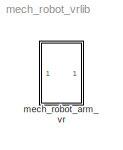
MODEL mech_robot_vrlib
KIND library
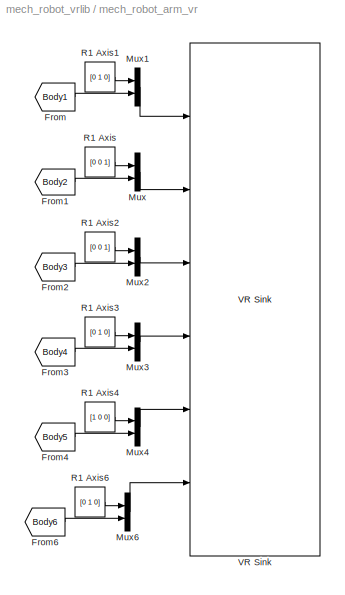
BLOCK [SubSystem] mech_robot_arm_vr
  FunctionWithSeparateData = off
  MaskHideContents = off
  MinAlgLoopOccurrences = off
  Opaque = off
  Ports = []
  PropExecContextOutsideSubsystem = off
  RTWSystemCode = Auto
  RequestExecContextInheritance = off
BLOCK [From] mech_robot_arm_vr/From
  CloseFcn = tagdialog Close
  GotoTag = Body1
BLOCK [From] mech_robot_arm_vr/From1
  CloseFcn = tagdialog Close
  GotoTag = Body2
BLOCK [From] mech_robot_arm_vr/From2
  CloseFcn = tagdialog Close
  GotoTag = Body3
BLOCK [From] mech_robot_arm_vr/From3
  CloseFcn = tagdialog Close
  GotoTag = Body4
BLOCK [From] mech_robot_arm_vr/From4
  CloseFcn = tagdialog Close
  GotoTag = Body5
BLOCK [From] mech_robot_arm_vr/From6
  CloseFcn = tagdialog Close
  GotoTag = Body6
BLOCK [Mux] mech_robot_arm_vr/Mux
  DisplayOption = bar
  Inputs = 2
  Ports = [2, 1]
BLOCK [Mux] mech_robot_arm_vr/Mux1
  DisplayOption = bar
  Inputs = 2
  Ports = [2, 1]
BLOCK [Mux] mech_robot_arm_vr/Mux2
  DisplayOption = bar
  Inputs = 2
  Ports = [2, 1]
BLOCK [Mux] mech_robot_arm_vr/Mux3
  DisplayOption = bar
  Inputs = 2
  Ports = [2, 1]
BLOCK [Mux] mech_robot_arm_vr/Mux4
  DisplayOption = bar
  Inputs = 2
  Ports = [2, 1]
BLOCK [Mux] mech_robot_arm_vr/Mux6
  DisplayOption = bar
  Inputs = 2
  Ports = [2, 1]
BLOCK [Constant] mech_robot_arm_vr/R1 Axis
  OutDataType = sfix(16)
  OutScaling = 2^0
  Value = [0 0 1]
BLOCK [Constant] mech_robot_arm_vr/R1 Axis1
  OutDataType = sfix(16)
  OutScaling = 2^0
  Value = [0 1 0]
BLOCK [Constant] mech_robot_arm_vr/R1 Axis2
  OutDataType = sfix(16)
  OutScaling = 2^0
  Value = [0 0 1]
BLOCK [Constant] mech_robot_arm_vr/R1 Axis3
  OutDataType = sfix(16)
  OutScaling = 2^0
  Value = [0 1 0]
BLOCK [Constant] mech_robot_arm_vr/R1 Axis4
  OutDataType = sfix(16)
  OutScaling = 2^0
  Value = [1 0 0]
BLOCK [Constant] mech_robot_arm_vr/R1 Axis6
  OutDataType = sfix(16)
  OutScaling = 2^0
  Value = [0 1 0]
BLOCK [Reference] mech_robot_arm_vr/VR Sink  REF=vrlib/VR Sink
  AttributesFormatString = <path>
  AutoView = off
  FieldsWritten = rbody1.rotation.4#rbody2.rotation.4#rbody3.rotation.4#rbody4.rotation.4#rbody5.rotation.4#drill.rotation.4
  FigureProperties = {'Position', 'Name', 'Viewpoint', 'CameraBound', 'CameraDirection', 'CameraPosition', 'CameraUpVector', 'ZoomFactor', 'Antialiasing', 'Headlight', 'Lighting', 'PanelMode', 'Textures', 'Transparency', 'Wireframe', 'DeleteFcn', ; }
  Ports = [6]
  RemoteChange = off
  RemoteView = off
  SampleTime = 0.01
  SourceBlock = vrlib/VR Sink
  SourceType = Virtual Reality Sink
  ViewEnable = on
  WorldDescription = robotamain
  WorldFileName = robotamain.wrl
LINE mech_robot_arm_vr/From1:1 -> mech_robot_arm_vr/Mux:2
LINE mech_robot_arm_vr/From2:1 -> mech_robot_arm_vr/Mux2:2
LINE mech_robot_arm_vr/From3:1 -> mech_robot_arm_vr/Mux3:2
LINE mech_robot_arm_vr/From4:1 -> mech_robot_arm_vr/Mux4:2
LINE mech_robot_arm_vr/From6:1 -> mech_robot_arm_vr/Mux6:2
LINE mech_robot_arm_vr/From:1 -> mech_robot_arm_vr/Mux1:2
LINE mech_robot_arm_vr/Mux1:1 -> mech_robot_arm_vr/VR Sink:1
LINE mech_robot_arm_vr/Mux2:1 -> mech_robot_arm_vr/VR Sink:3
LINE mech_robot_arm_vr/Mux3:1 -> mech_robot_arm_vr/VR Sink:4
LINE mech_robot_arm_vr/Mux4:1 -> mech_robot_arm_vr/VR Sink:5
LINE mech_robot_arm_vr/Mux6:1 -> mech_robot_arm_vr/VR Sink:6
LINE mech_robot_arm_vr/Mux:1 -> mech_robot_arm_vr/VR Sink:2
LINE mech_robot_arm_vr/R1 Axis1:1 -> mech_robot_arm_vr/Mux1:1
LINE mech_robot_arm_vr/R1 Axis2:1 -> mech_robot_arm_vr/Mux2:1
LINE mech_robot_arm_vr/R1 Axis3:1 -> mech_robot_arm_vr/Mux3:1
LINE mech_robot_arm_vr/R1 Axis4:1 -> mech_robot_arm_vr/Mux4:1
LINE mech_robot_arm_vr/R1 Axis6:1 -> mech_robot_arm_vr/Mux6:1
LINE mech_robot_arm_vr/R1 Axis:1 -> mech_robot_arm_vr/Mux:1
note: 1 file-system path scrubbed to <path> (not preserved elsewhere — flat text is the only slx artifact)
